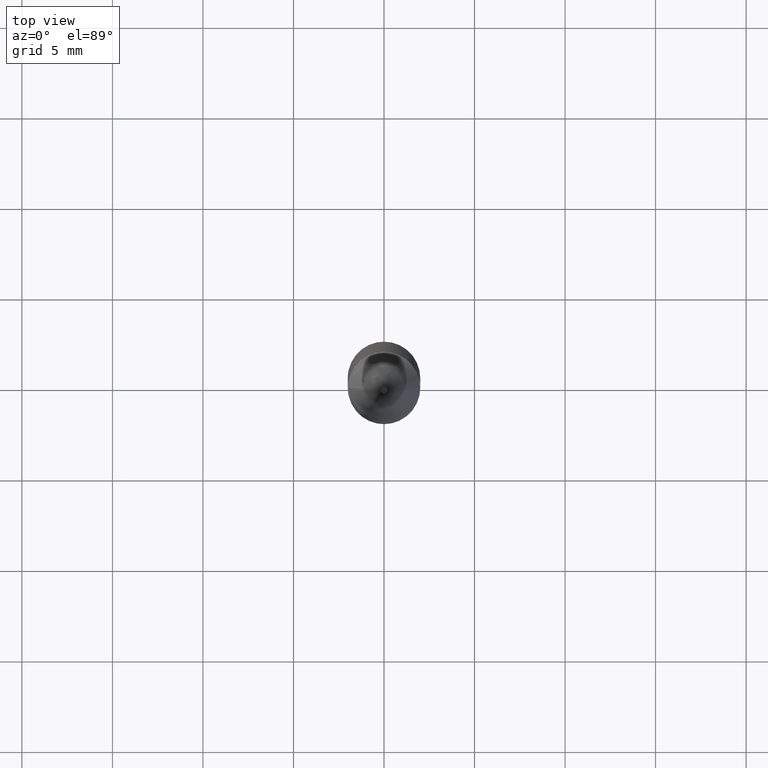
[diagram: clean part render]
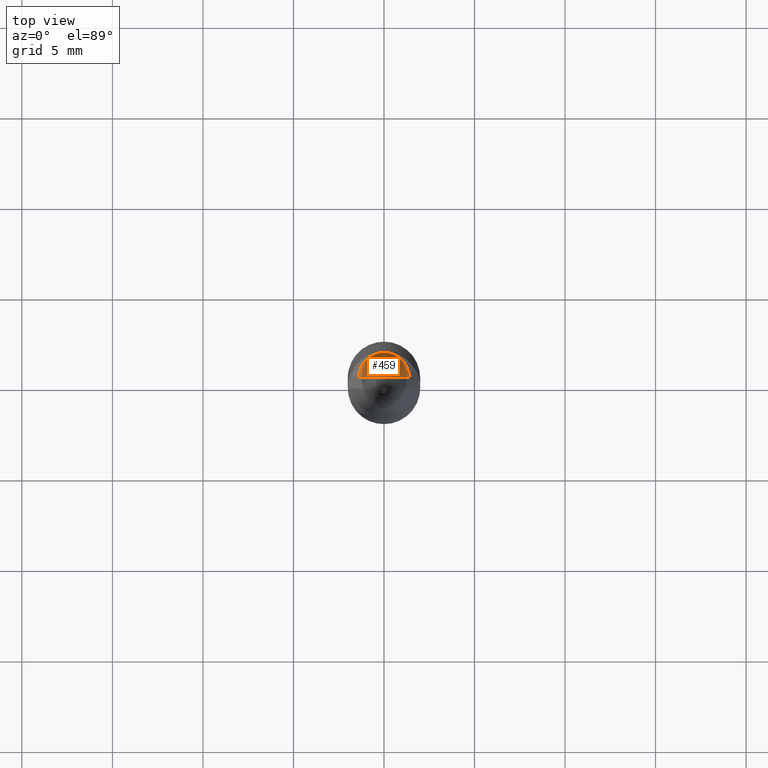
[diagram: same view with one face highlighted and labeled with its STEP entity id]
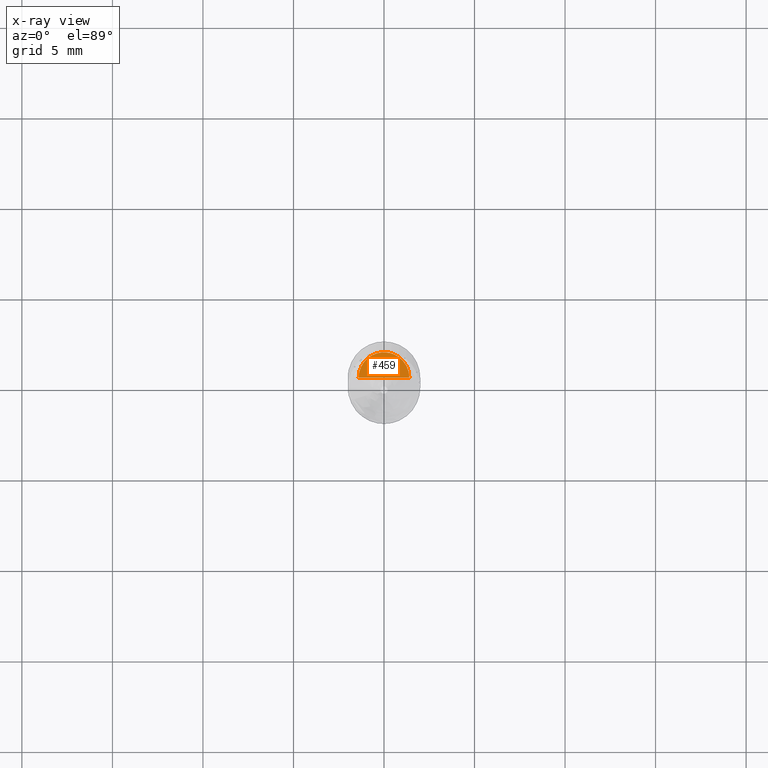
[diagram: x-ray of the same camera — body ghosted, the highlighted face saturated]
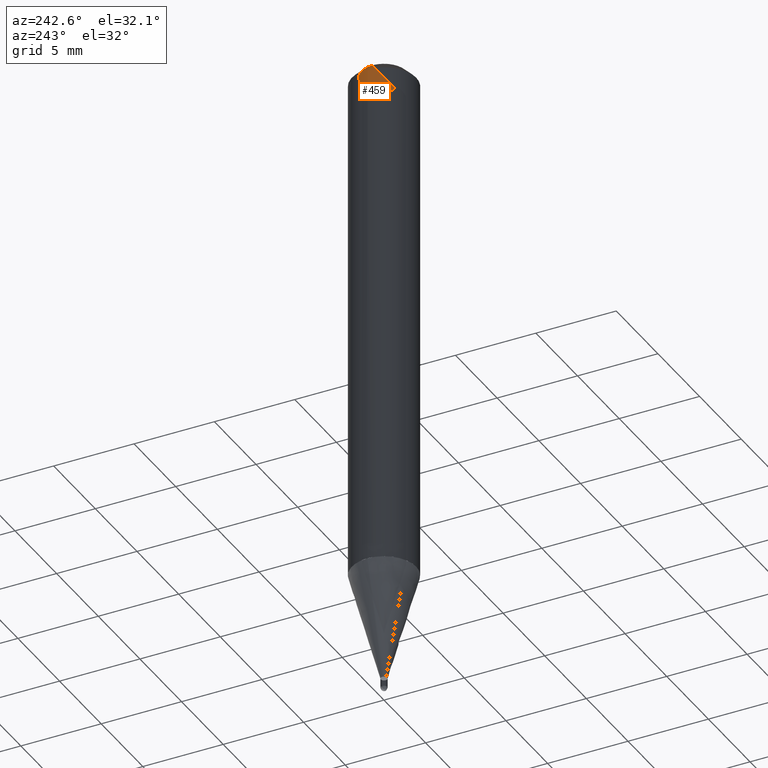
[diagram: same view with one face highlighted and labeled with its STEP entity id]
A machine part, top view. The second image highlights one B-rep face of the part: STEP entity #459.
The next image is the same camera in x-ray: the body ghosted, the highlighted face saturated — about 0% of this face is hidden behind the body in this view.
A second angle (auxiliary view) of the same face is appended — the face is thin or edge-on in the first view.
In plain terms, the highlighted face is a freeform B-spline surface patch.
Its self-contained STEP definition (entity closure, byte-faithful):
#217=CARTESIAN_POINT('',(1.4,0.0,32.482));
#218=CARTESIAN_POINT('',(1.4,1.4,32.482));
#219=CARTESIAN_POINT('',(0.0,1.4,32.482));
#220=CARTESIAN_POINT('',(-1.4,1.4,32.482));
#221=CARTESIAN_POINT('',(-1.4,0.0,32.482));
#222=CARTESIAN_POINT('',(0.0,0.0,32.482));
#444=(
BOUNDED_SURFACE()
B_SPLINE_SURFACE(1,2,(
(#217,#218,#219,#220,#221),
(#222,#222,#222,#222,#222)
), .UNSPECIFIED.,.F.,.F.,.F.)
B_SPLINE_SURFACE_WITH_KNOTS((2,2),(3,2,3),(
0.0,1.0),(
0.0,0.5,1.0), .UNSPECIFIED.)
GEOMETRIC_REPRESENTATION_ITEM()
RATIONAL_B_SPLINE_SURFACE(((1.0,0.707106781187,1.0,0.707106781187,1.0),
(1.0,0.707106781187,1.0,0.707106781187,1.0)
))
REPRESENTATION_ITEM('')
SURFACE()
);
#445=(
BOUNDED_CURVE()
B_SPLINE_CURVE(1,(#222,#217),.UNSPECIFIED.,.F.,.F.)
B_SPLINE_CURVE_WITH_KNOTS((2,2),
(0.0,1.0),.UNSPECIFIED.)
CURVE()
GEOMETRIC_REPRESENTATION_ITEM()
RATIONAL_B_SPLINE_CURVE((1.0,1.0))
REPRESENTATION_ITEM('')
);
#446=(
BOUNDED_CURVE()
B_SPLINE_CURVE(2,(#217,#218,#219,#220,#221),.UNSPECIFIED.,.F.,.F.)
B_SPLINE_CURVE_WITH_KNOTS((3,2,3),
(0.0,0.5,1.0),.UNSPECIFIED.)
CURVE()
GEOMETRIC_REPRESENTATION_ITEM()
RATIONAL_B_SPLINE_CURVE((1.0,0.707106781187,1.0,0.707106781187,1.0))
REPRESENTATION_ITEM('')
);
#447=(
BOUNDED_CURVE()
B_SPLINE_CURVE(1,(#221,#222),.UNSPECIFIED.,.F.,.F.)
B_SPLINE_CURVE_WITH_KNOTS((2,2),
(0.0,1.0),.UNSPECIFIED.)
CURVE()
GEOMETRIC_REPRESENTATION_ITEM()
RATIONAL_B_SPLINE_CURVE((1.0,1.0))
REPRESENTATION_ITEM('')
);
#448=VERTEX_POINT('',#217);
#449=VERTEX_POINT('',#221);
#450=VERTEX_POINT('',#222);
#451=EDGE_CURVE('',#450,#448,#445,.T.);
#452=EDGE_CURVE('',#448,#449,#446,.T.);
#453=EDGE_CURVE('',#449,#450,#447,.T.);
#454=ORIENTED_EDGE('',*,*,#451,.T.);
#455=ORIENTED_EDGE('',*,*,#452,.T.);
#456=ORIENTED_EDGE('',*,*,#453,.T.);
#457=EDGE_LOOP('',(#454,#455,#456));
#458=FACE_OUTER_BOUND('',#457,.T.);
#459=ADVANCED_FACE('',(#458),#444,.T.);